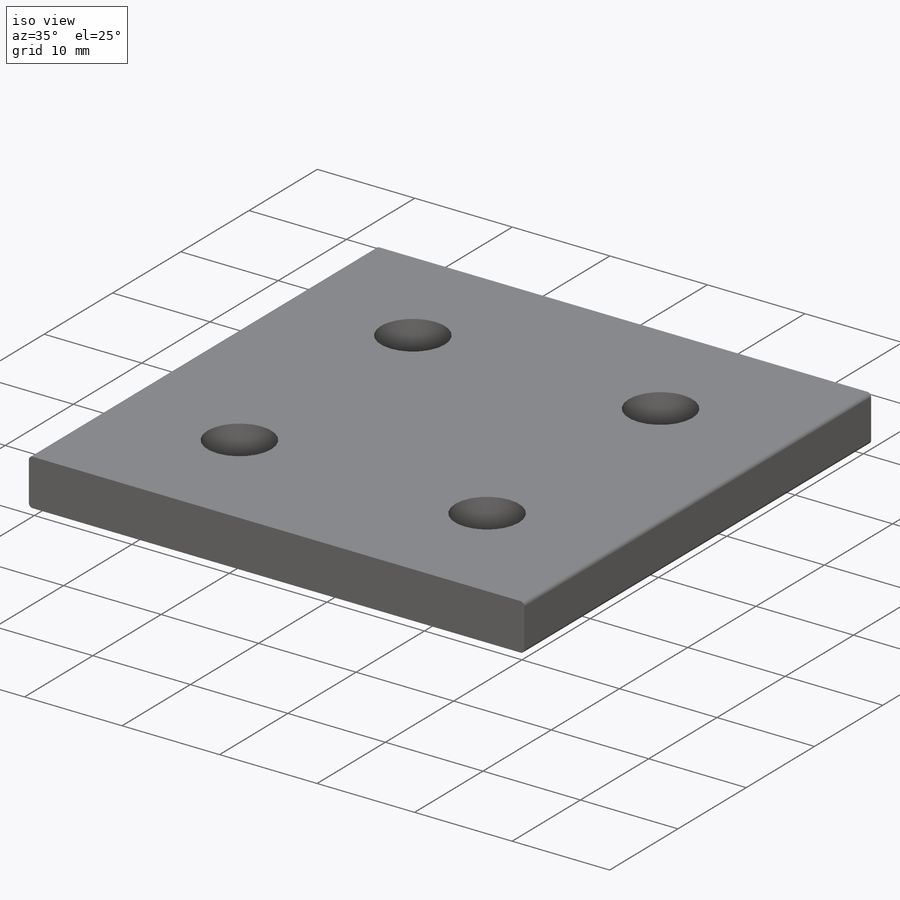
[diagram: iso view]
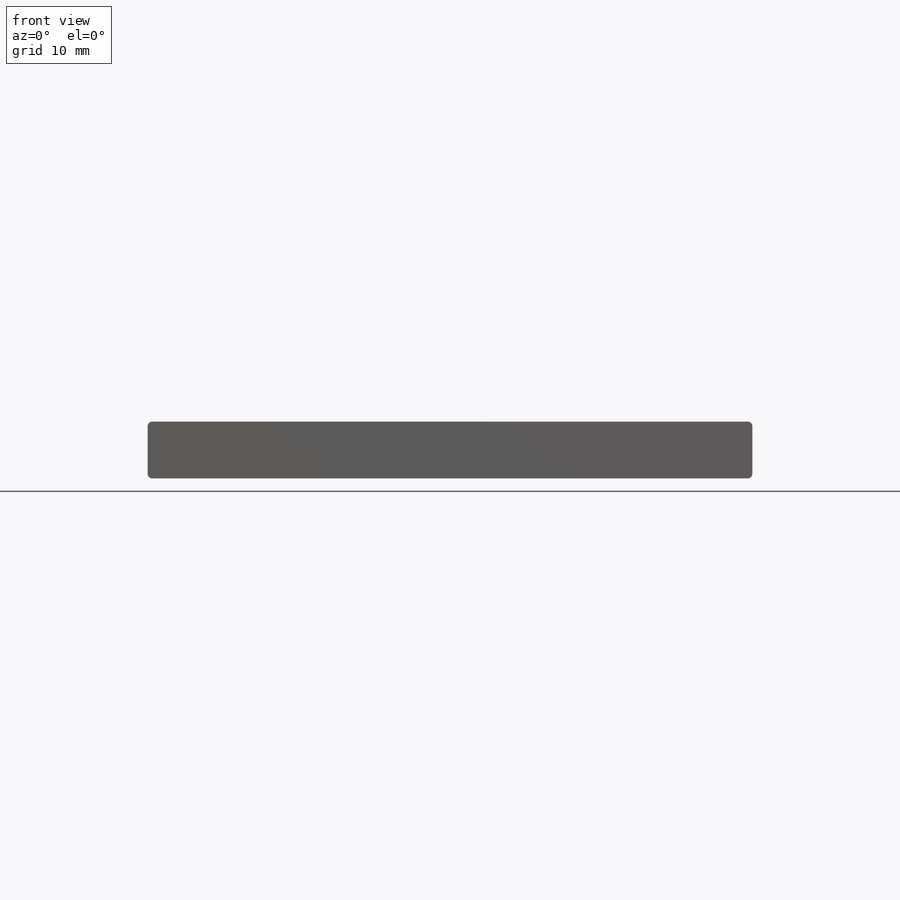
[diagram: front view]
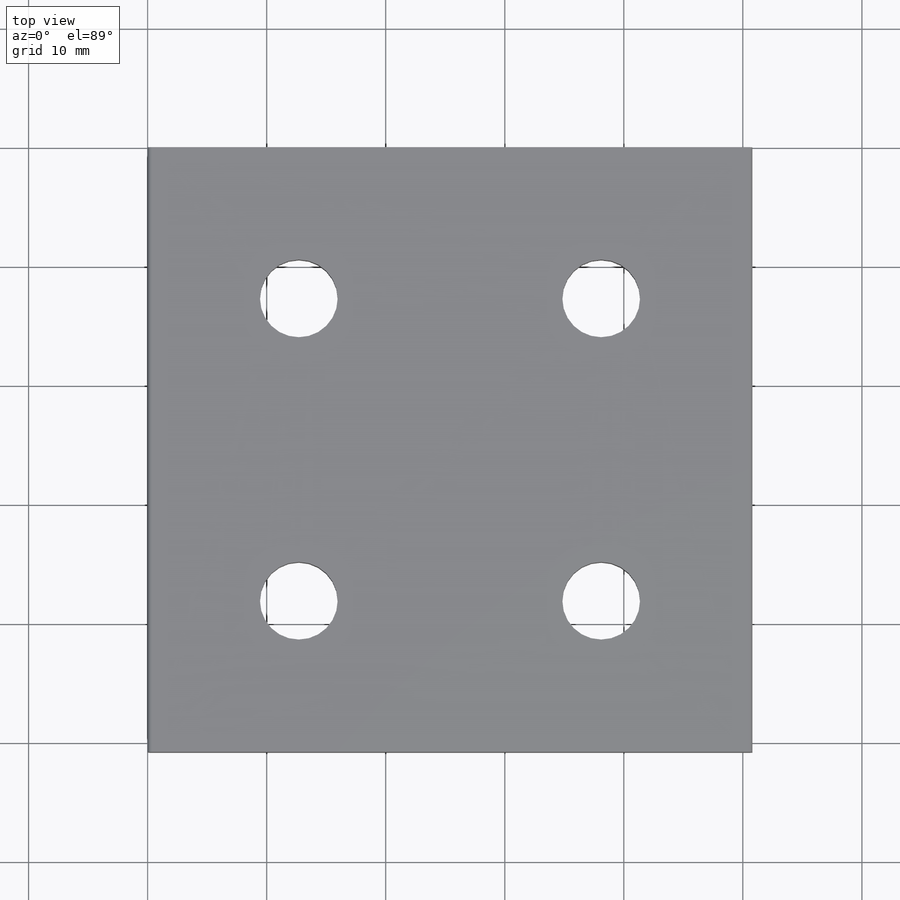
[diagram: top view]
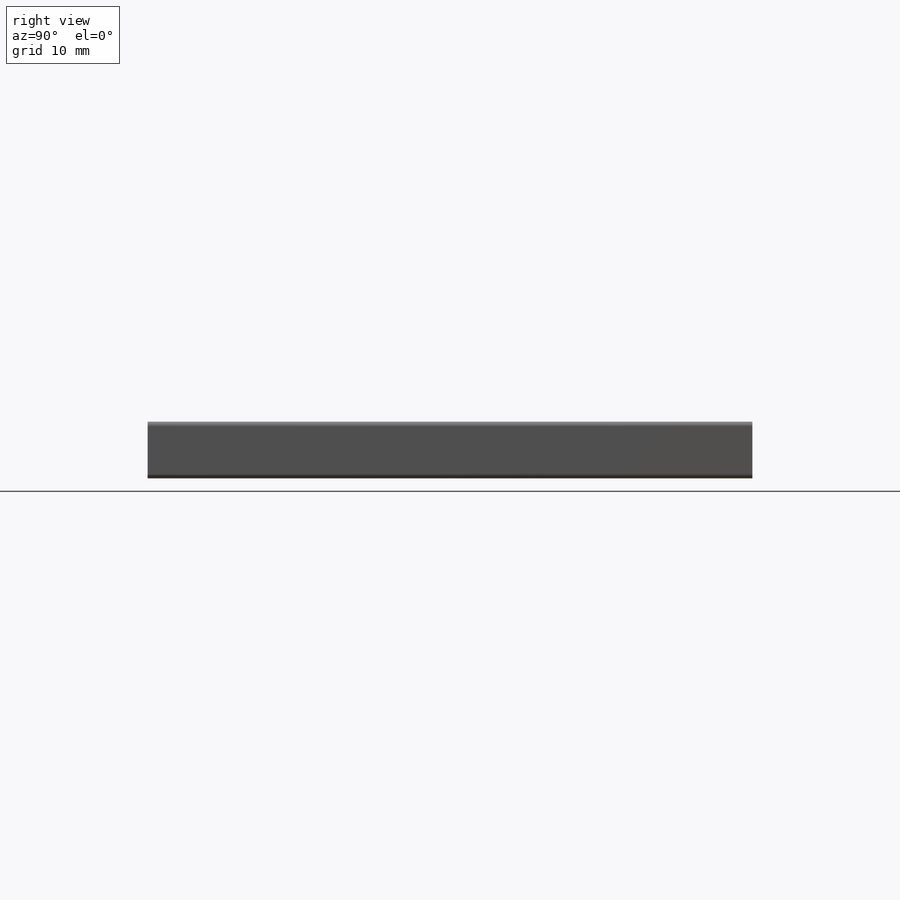
[diagram: right view]
SOLIDWORKS PART (.sldprt)
format: sldprt  version: not decoded by parser v0  size: 217,088 bytes
history: native  units: mm
features: sketch x4, plane x3, material x1, extrude x1, hole x1, fillet x1, pattern_linear x1 (+13 scaffold rows collapsed)
feature tree (25):
  scaffold x13  (default folders/planes/origin — collapsed)
  material  "6105-T5 Aluminum"
  plane  "Plane1"
  sketch  "Sketch1"  dims[D1=0.0mm D2=0.0mm D3=50.8mm D4=50.8mm]
  sketch  "AlignGroup2"
  extrude  "Boss-Extrude1"  Depth=4.7752mm
  hole  "F (0.257) Diameter Hole1"  Diameter=6.5278mm Depth=4.7752mm
  sketch  "Sketch3"
  sketch  "Sketch2"  dims[hole-wizard template sketch: 60 standard entries collapsed; hole parameters kept: c18.Thru Hole Depth=4.7752mm]
  fillet  "Fillet1"  Radius=0.381mm
  pattern_linear  "LPattern1"  Count1=2 Count2=2 Spacing1=25.4mm Spacing2=25.4mm
  plane  "Plane2"  Offset=25.4mm
  plane  "Plane3"  Offset=25.4mm
decode coverage: 6 of 8 modeling features carry decoded parameters
note: ~ marks probable driven/reference dimensions
note: suppression state not decoded; provenance and decode notes live in map.json
